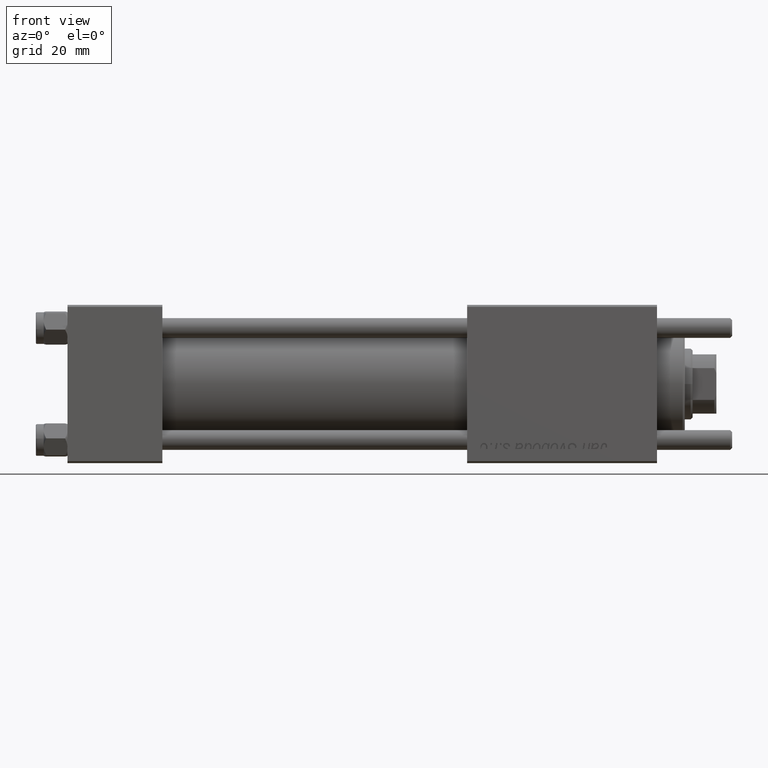
[diagram: clean part render]
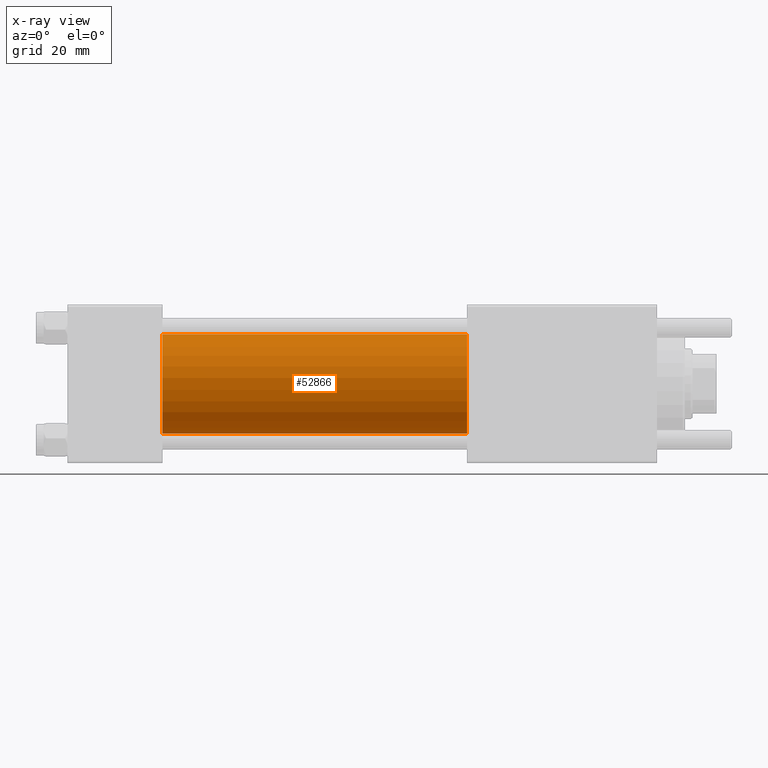
[diagram: x-ray — body ghosted, one internal face saturated and labeled with its STEP entity id]
A machine part, front view, then the same camera in x-ray: the body is ghosted and one INTERNAL B-rep face — a face not visible from any outside direction — is saturated and labeled: STEP entity #52866.
In plain terms, the highlighted cylindrical surface (partial cylindrical patch) has radius 12.5 mm, axis along (-1, -0, -0).
Its self-contained STEP definition (entity closure, byte-faithful):
#2902 = VERTEX_POINT ( 'NONE', #12081 ) ;
#3482 = CARTESIAN_POINT ( 'NONE',  ( 101.0000000000000000, -2.602085213965210642E-15, 12.49999999999999645 ) ) ;
#9942 = DIRECTION ( 'NONE',  ( 0.000000000000000000, 0.000000000000000000, 1.000000000000000000 ) ) ;
#12081 = CARTESIAN_POINT ( 'NONE',  ( 24.00000000000000000, -2.602085213965210642E-15, 12.49999999999999645 ) ) ;
#12104 = ORIENTED_EDGE ( 'NONE', *, *, #18289, .F. ) ;
#12173 = VECTOR ( 'NONE', #32286, 1000.000000000000000 ) ;
#13259 = VERTEX_POINT ( 'NONE', #3482 ) ;
#16120 = CARTESIAN_POINT ( 'NONE',  ( 24.00000000000000000, -1.071276715031019515E-15, -12.49999999999999645 ) ) ;
#16913 = AXIS2_PLACEMENT_3D ( 'NONE', #49800, #50379, #9942 ) ;
#17171 = EDGE_CURVE ( 'NONE', #2902, #56394, #54375, .T. ) ;
#17836 = AXIS2_PLACEMENT_3D ( 'NONE', #33953, #54415, #45798 ) ;
#18241 = LINE ( 'NONE', #27413, #12173 ) ;
#18289 = EDGE_CURVE ( 'NONE', #13259, #2902, #19155, .T. ) ;
#19155 = LINE ( 'NONE', #36636, #52573 ) ;
#23547 = ORIENTED_EDGE ( 'NONE', *, *, #25521, .T. ) ;
#24083 = VERTEX_POINT ( 'NONE', #44682 ) ;
#25521 = EDGE_CURVE ( 'NONE', #13259, #24083, #50812, .T. ) ;
#27413 = CARTESIAN_POINT ( 'NONE',  ( 101.0000000000000000, -1.071276715031019515E-15, -12.49999999999999645 ) ) ;
#29885 = DIRECTION ( 'NONE',  ( 0.000000000000000000, 0.000000000000000000, -1.000000000000000000 ) ) ;
#31149 = ORIENTED_EDGE ( 'NONE', *, *, #17171, .F. ) ;
#32015 = CYLINDRICAL_SURFACE ( 'NONE', #16913, 12.49999999999999645 ) ;
#32286 = DIRECTION ( 'NONE',  ( -1.000000000000000000, -0.000000000000000000, -0.000000000000000000 ) ) ;
#33953 = CARTESIAN_POINT ( 'NONE',  ( 101.0000000000000000, -2.602085213965210642E-15, 0.000000000000000000 ) ) ;
#36636 = CARTESIAN_POINT ( 'NONE',  ( 101.0000000000000000, -2.602085213965210642E-15, 12.49999999999999645 ) ) ;
#38462 = DIRECTION ( 'NONE',  ( 1.000000000000000000, 0.000000000000000000, 0.000000000000000000 ) ) ;
#40898 = FACE_OUTER_BOUND ( 'NONE', #44330, .T. ) ;
#40943 = DIRECTION ( 'NONE',  ( -1.000000000000000000, -0.000000000000000000, -0.000000000000000000 ) ) ;
#42667 = EDGE_CURVE ( 'NONE', #24083, #56394, #18241, .T. ) ;
#42789 = ORIENTED_EDGE ( 'NONE', *, *, #42667, .T. ) ;
#44236 = AXIS2_PLACEMENT_3D ( 'NONE', #47085, #38462, #29885 ) ;
#44330 = EDGE_LOOP ( 'NONE', ( #23547, #42789, #31149, #12104 ) ) ;
#44682 = CARTESIAN_POINT ( 'NONE',  ( 101.0000000000000000, -1.071276715031019515E-15, -12.49999999999999645 ) ) ;
#45798 = DIRECTION ( 'NONE',  ( 0.000000000000000000, 0.000000000000000000, -1.000000000000000000 ) ) ;
#47085 = CARTESIAN_POINT ( 'NONE',  ( 24.00000000000000000, -2.602085213965210642E-15, 0.000000000000000000 ) ) ;
#49800 = CARTESIAN_POINT ( 'NONE',  ( 101.0000000000000000, -2.602085213965210642E-15, 0.000000000000000000 ) ) ;
#50379 = DIRECTION ( 'NONE',  ( -1.000000000000000000, -0.000000000000000000, -0.000000000000000000 ) ) ;
#50812 = CIRCLE ( 'NONE', #17836, 12.49999999999999645 ) ;
#52573 = VECTOR ( 'NONE', #40943, 1000.000000000000000 ) ;
#52866 = ADVANCED_FACE ( 'NONE', ( #40898 ), #32015, .F. ) ;
#54375 = CIRCLE ( 'NONE', #44236, 12.49999999999999645 ) ;
#54415 = DIRECTION ( 'NONE',  ( 1.000000000000000000, 0.000000000000000000, 0.000000000000000000 ) ) ;
#56394 = VERTEX_POINT ( 'NONE', #16120 ) ;